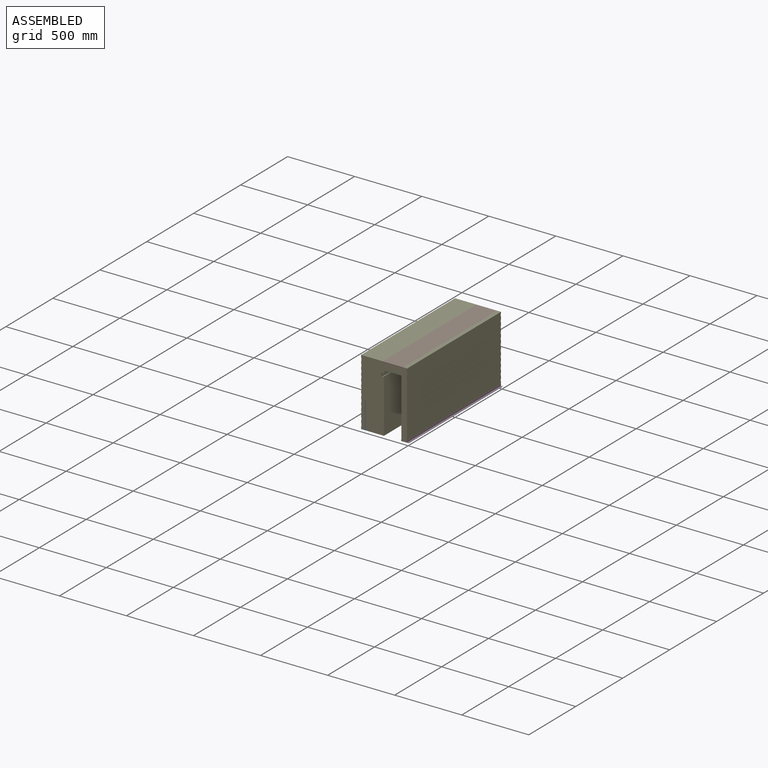
[diagram: assembled view]
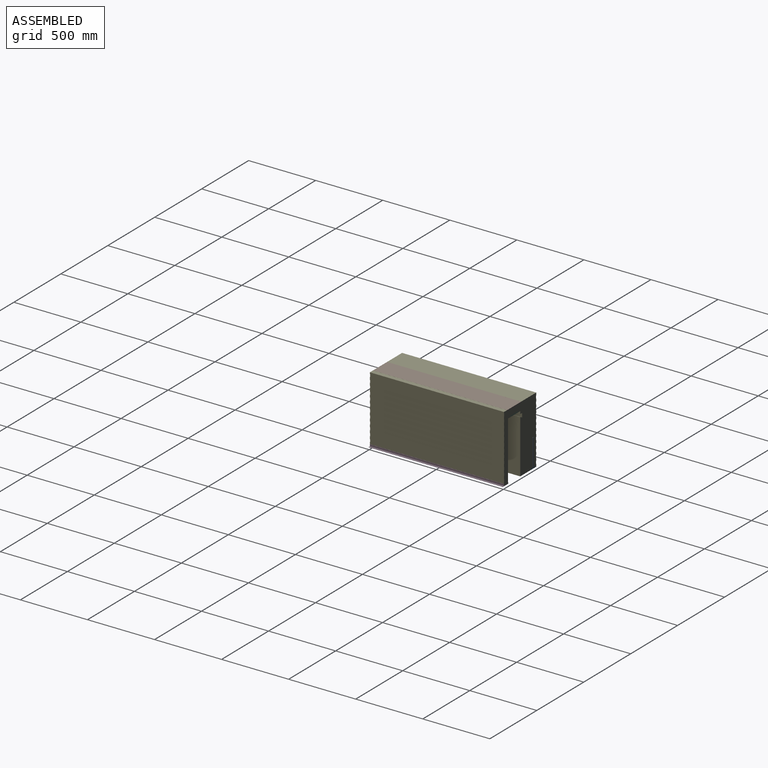
[diagram: assembled view, second angle]
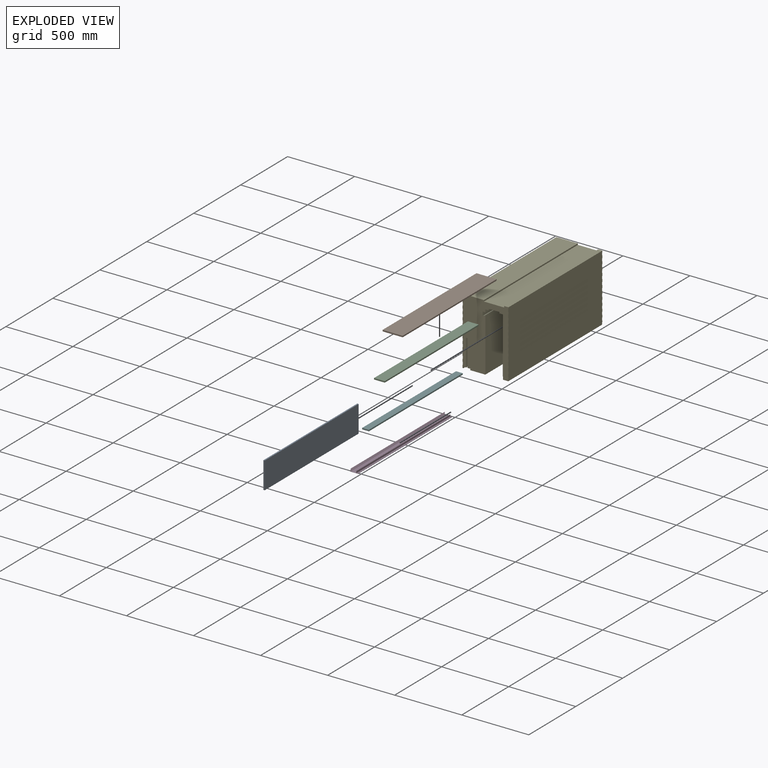
[diagram: exploded view]
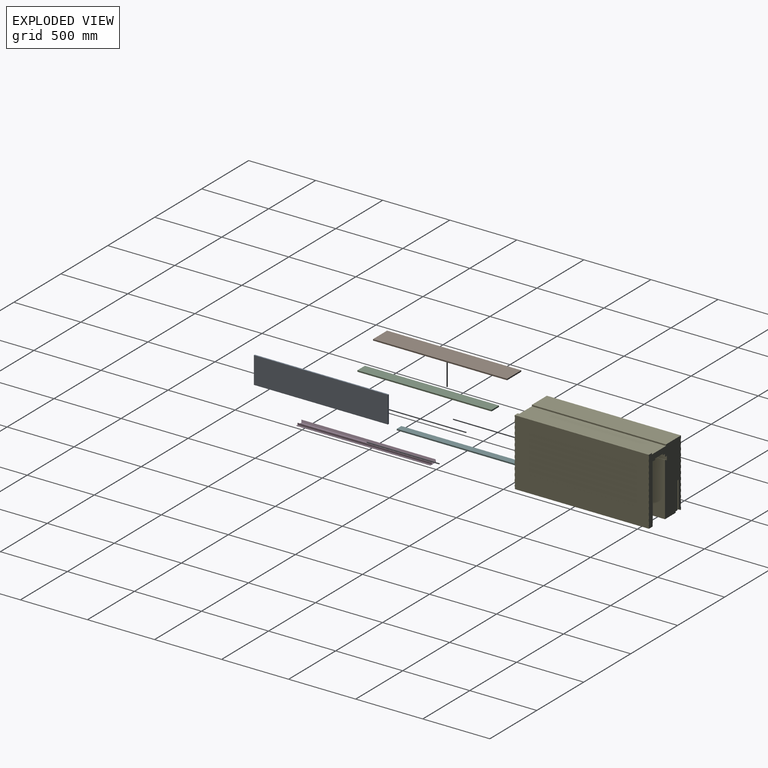
[diagram: exploded view, second angle]
ASSEMBLY  parts=6 mates=5
PART A: 6 faces, bbox 200x1000x10 mm
  f0: plane 1000x10mm, normal (-1,0,0), area 10000mm2, adj f1,f3,f4,f5
  f1: plane 1000x200mm, normal (0,0,-1), area 200000mm2, adj f0,f2,f4,f5
  f2: plane 1000x10mm, normal (1,0,0), area 10000mm2, adj f1,f3,f4,f5
  f3: plane 1000x200mm, normal (0,0,1), area 200000mm2, adj f0,f2,f4,f5
  f4: plane 200x10mm, normal (0,-1,0), area 2000mm2, adj f0,f1,f2,f3
  f5: plane 200x10mm, normal (0,1,0), area 2000mm2, adj f0,f1,f2,f3
PART B: 6 faces, bbox 150x1000x10 mm
  f0: plane 1000x10mm, normal (-1,0,0), area 10000mm2, adj f1,f3,f4,f5
  f1: plane 1000x150mm, normal (0,0,-1), area 150000mm2, adj f0,f2,f4,f5
  f2: plane 1000x10mm, normal (1,0,0), area 10000mm2, adj f1,f3,f4,f5
  f3: plane 1000x150mm, normal (0,0,1), area 150000mm2, adj f0,f2,f4,f5
  f4: plane 150x10mm, normal (0,-1,0), area 1500mm2, adj f0,f1,f2,f3
  f5: plane 150x10mm, normal (0,1,0), area 1500mm2, adj f0,f1,f2,f3
PART C: 6 faces, bbox 80x1000x10 mm
  f0: plane 1000x10mm, normal (-1,0,0), area 10000mm2, adj f1,f3,f4,f5
  f1: plane 1000x80mm, normal (0,0,-1), area 80000mm2, adj f0,f2,f4,f5
  f2: plane 1000x10mm, normal (1,0,0), area 10000mm2, adj f1,f3,f4,f5
  f3: plane 1000x80mm, normal (0,0,1), area 80000mm2, adj f0,f2,f4,f5
  f4: plane 80x10mm, normal (0,-1,0), area 800mm2, adj f0,f1,f2,f3
  f5: plane 80x10mm, normal (0,1,0), area 800mm2, adj f0,f1,f2,f3
PART D: 62 faces, bbox 57.5x1000x21 mm
  f0: plane 1000x14.3mm, normal (-1,0,0), area 14303.9mm2, adj f1,f2,f60,f61
  f1: plane 57.5x21mm, normal (0,-1,0), area 145.8mm2, adj f0,f2,f3,f4,f5,f6,f7,f8
  f2: plane 1000x11mm, normal (0,0,1), area 11000mm2, adj f0,f1,f3,f60
  f3: plane 1000x1.5mm, normal (1,0,0), area 1500mm2, adj f1,f2,f4,f60
  f4: plane 1000x1.5mm, normal (0,0,1), area 1500mm2, adj f1,f3,f5,f60
  f5: plane 1000x3mm, normal (-1,0,0), area 3000mm2, adj f1,f4,f6,f60
  f6: plane 1000x57.5mm, normal (0,0,-1), area 57500mm2, adj f1,f5,f7,f60
  f7: plane 1000x4mm, normal (1,0,0), area 4000mm2, adj f1,f6,f8,f60
  f8: plane 1000x1mm, normal (0,0,1), area 1000mm2, adj f1,f7,f9,f60
  f9: plane 1000x3mm, normal (-1,0,0), area 3000mm2, adj f1,f8,f10,f60
  f10: plane 1000x1mm, normal (0,0,1), area 1000mm2, adj f1,f9,f11,f60
  f11: plane 1000x7mm, normal (1,0,0), area 7000mm2, adj f1,f10,f12,f60
  f12: plane 1000x1mm, normal (0,0,-1), area 1000mm2, adj f1,f11,f13,f60
  f13: plane 1000x3mm, normal (-1,0,0), area 3000mm2, adj f1,f12,f14,f60
  f14: plane 1000x1mm, normal (0,0,-1), area 1000mm2, adj f1,f13,f15,f60
  f15: plane 1000x4mm, normal (1,0,0), area 4000mm2, adj f1,f14,f16,f60
  f16: plane 1000x2mm, normal (0,0,1), area 2000mm2, adj f1,f15,f17,f60
  f17: plane 1000x12mm, normal (1,0,0), area 12000mm2, adj f1,f16,f18,f60
  f18: plane 1000x1mm, normal (0,0,1), area 1000mm2, adj f1,f17,f19,f60
  f19: plane 1000x1.73mm, normal (-0.87,0,0.5), area 2000mm2, adj f1,f18,f20,f60
  f20: plane 1000x1mm, normal (0,0,-1), area 1000mm2, adj f1,f19,f21,f60
  f21: plane 1000x1.73mm, normal (-0.87,0,0.5), area 2000mm2, adj f1,f20,f22,f60
  f22: plane 1000x1mm, normal (0,0,-1), area 1000mm2, adj f1,f21,f23,f60
  f23: plane 1000x1.73mm, normal (-0.87,0,0.5), area 2000mm2, adj f1,f22,f24,f60
  f24: plane 1000x1mm, normal (0,0,-1), area 1000mm2, adj f1,f23,f25,f60
  f25: plane 1000x1.73mm, normal (-0.87,0,0.5), area 2000mm2, adj f1,f24,f26,f60
  f26: plane 1000x1mm, normal (0,0,-1), area 1000mm2, adj f1,f25,f27,f60
  f27: plane 1000x1.73mm, normal (-0.87,0,0.5), area 2000mm2, adj f1,f26,f28,f60
  f28: plane 1000x1mm, normal (0,0,-1), area 1000mm2, adj f1,f27,f29,f60
  f29: plane 1000x1.73mm, normal (-0.87,0,0.5), area 2000mm2, adj f1,f28,f30,f60
  f30: plane 1000x1mm, normal (0,0,-1), area 1000mm2, adj f1,f29,f31,f60
  f31: plane 1000x1.73mm, normal (-0.87,0,0.5), area 2000mm2, adj f1,f30,f32,f60
  f32: plane 1000x1mm, normal (0,0,-1), area 1000mm2, adj f1,f31,f33,f60
  f33: plane 1000x1.73mm, normal (-0.87,0,0.5), area 2000mm2, adj f1,f32,f34,f60
  f34: plane 1000x1mm, normal (0,0,-1), area 1000mm2, adj f1,f33,f35,f60
  f35: plane 1000x1.73mm, normal (-0.87,0,0.5), area 2000mm2, adj f1,f34,f36,f60
  f36: plane 1000x1mm, normal (0,0,-1), area 1000mm2, adj f1,f35,f37,f60
  f37: plane 1000x1.73mm, normal (-0.87,0,0.5), area 2000mm2, adj f1,f36,f38,f60
  f38: plane 1000x1mm, normal (0,0,-1), area 1000mm2, adj f1,f37,f39,f60
  f39: plane 1000x1.73mm, normal (-0.87,0,0.5), area 2000mm2, adj f1,f38,f40,f60
  f40: plane 1000x1mm, normal (0,0,-1), area 1000mm2, adj f1,f39,f41,f60
  f41: plane 1000x0.45mm, normal (-1,0,0), area 447.4mm2, adj f1,f40,f42,f60
  f42: plane 1000x41mm, normal (0,0,1), area 41000mm2, adj f1,f41,f43,f60
  f43: plane 1000x0.45mm, normal (1,0,0), area 447.4mm2, adj f1,f42,f44,f60
  f44: plane 1000x1mm, normal (0,0,-1), area 1000mm2, adj f1,f43,f45,f60
  f45: plane 1000x1.73mm, normal (0.87,0,0.5), area 2000mm2, adj f1,f44,f46,f60
  f46: plane 1000x1mm, normal (0,0,-1), area 1000mm2, adj f1,f45,f47,f60
  f47: plane 1000x1.73mm, normal (0.87,0,0.5), area 2000mm2, adj f1,f46,f48,f60
  f48: plane 1000x1mm, normal (0,0,-1), area 1000mm2, adj f1,f47,f49,f60
  f49: plane 1000x1.73mm, normal (0.87,0,0.5), area 2000mm2, adj f1,f48,f50,f60
  f50: plane 1000x1mm, normal (0,0,-1), area 1000mm2, adj f1,f49,f51,f60
  f51: plane 1000x1.73mm, normal (0.87,0,0.5), area 2000mm2, adj f1,f50,f52,f60
  f52: plane 1000x1mm, normal (0,0,-1), area 1000mm2, adj f1,f51,f53,f60
  f53: plane 1000x1.73mm, normal (0.87,0,0.5), area 2000mm2, adj f1,f52,f54,f60
  f54: plane 1000x1mm, normal (0,0,-1), area 1000mm2, adj f1,f53,f55,f60
  f55: plane 1000x1.73mm, normal (0.87,0,0.5), area 2000mm2, adj f1,f54,f56,f60
  f56: plane 1000x1mm, normal (0,0,-1), area 1000mm2, adj f1,f55,f57,f60
  f57: plane 1000x1.73mm, normal (0.87,0,0.5), area 2000mm2, adj f1,f56,f58,f60
  f58: plane 1000x1mm, normal (0,0,-1), area 1000mm2, adj f1,f57,f59,f60
  f59: plane 1000x1.73mm, normal (0.87,0,0.5), area 2000mm2, adj f1,f58,f60,f61
  f60: plane 57.5x21mm, normal (0,1,0), area 145.8mm2, adj f0,f2,f3,f4,f5,f6,f7,f8
  f61: plane 1000x1mm, normal (0,0,1), area 1000mm2, adj f0,f1,f59,f60
PART E: 130 faces, bbox 343x500x1000 mm
  f0: plane 500x343mm, normal (0,0,1), area 107699.3mm2, adj f2,f3,f4,f5,f6,f7,f8,f9
  f1: plane 500x343mm, normal (0,0,-1), area 107699.3mm2, adj f2,f3,f4,f5,f6,f7,f8,f9
  f2: plane 1000x20mm, normal (-1,0,0), area 20000mm2, adj f0,f1,f122,f126
  f3: plane 1000x20mm, normal (-1,0,0), area 20000mm2, adj f0,f1,f119,f123
  f4: plane 1000x20mm, normal (-1,0,0), area 20000mm2, adj f0,f1,f116,f120
  f5: plane 1000x20mm, normal (-1,0,0), area 20000mm2, adj f0,f1,f113,f117
  f6: plane 1000x20mm, normal (-1,0,0), area 20000mm2, adj f0,f1,f110,f114
  f7: plane 1000x20mm, normal (-1,0,0), area 20000mm2, adj f0,f1,f107,f111
  f8: plane 1000x20mm, normal (-1,0,0), area 20000mm2, adj f0,f1,f104,f108
  f9: plane 1000x20mm, normal (-1,0,0), area 20000mm2, adj f0,f1,f101,f105
  f10: plane 1000x20mm, normal (-1,0,0), area 20000mm2, adj f0,f1,f98,f102
  f11: plane 1000x20mm, normal (-1,0,0), area 20000mm2, adj f0,f1,f95,f99
  f12: plane 1000x20mm, normal (-1,0,0), area 20000mm2, adj f0,f1,f92,f96
  f13: plane 1000x20mm, normal (-1,0,0), area 20000mm2, adj f0,f1,f28,f93
  f14: plane 1000x10mm, normal (1,0,0), area 10000mm2, adj f0,f1,f52,f89
  f15: plane 1000x20mm, normal (1,0,0), area 20000mm2, adj f0,f1,f86,f90
  f16: plane 1000x20mm, normal (1,0,0), area 20000mm2, adj f0,f1,f83,f87
  f17: plane 1000x20mm, normal (1,0,0), area 20000mm2, adj f0,f1,f80,f84
  f18: plane 1000x20mm, normal (1,0,0), area 20000mm2, adj f0,f1,f77,f81
  f19: plane 1000x20mm, normal (1,0,0), area 20000mm2, adj f0,f1,f74,f78
  f20: plane 1000x20mm, normal (1,0,0), area 20000mm2, adj f0,f1,f71,f75
  f21: plane 1000x20mm, normal (1,0,0), area 20000mm2, adj f0,f1,f68,f72
  f22: plane 1000x20mm, normal (1,0,0), area 20000mm2, adj f0,f1,f65,f69
  f23: plane 1000x20mm, normal (1,0,0), area 20000mm2, adj f0,f1,f62,f66
  f24: plane 1000x20mm, normal (1,0,0), area 20000mm2, adj f0,f1,f59,f63
  f25: plane 1000x20mm, normal (1,0,0), area 20000mm2, adj f0,f1,f56,f60
  f26: plane 1000x150.5mm, normal (0,1,0), area 150500mm2, adj f0,f1,f27,f55
  f27: plane 1000x10mm, normal (1,0,0), area 10000mm2, adj f0,f1,f26,f28
  f28: plane 1000x159.75mm, normal (0,1,0), area 159750mm2, adj f0,f1,f13,f27
  f29: plane 1000x20mm, normal (-1,0,0), area 20000mm2, adj f0,f1,f30,f125
  f30: plane 1000x7mm, normal (0,-1,0), area 7000mm2, adj f0,f1,f29,f129
  f31: plane 1000x202mm, normal (1,0,0), area 202000mm2, adj f0,f1,f32,f128
  f32: cylinder r=10mm len=1000mm, axis (0,0,-1), area 11054.3mm2, adj f0,f1,f31,f33
  f33: plane 1000x202mm, normal (-1,0,0), area 202000mm2, adj f0,f1,f32,f34
  f34: plane 1000x20mm, normal (0,-1,0), area 20000mm2, adj f0,f1,f33,f35
  f35: plane 1000x10mm, normal (-1,0,0), area 10000mm2, adj f0,f1,f34,f36
  f36: plane 1000x112.5mm, normal (0,-1,0), area 112500mm2, adj f0,f1,f35,f37
  f37: plane 1000x400.19mm, normal (1,0,0), area 400190.5mm2, adj f0,f1,f36,f38
  f38: plane 1000x20mm, normal (-0.45,0.89,0), area 22446.5mm2, adj f0,f1,f37,f39
  f39: plane 1000x30mm, normal (1,0,0), area 30000mm2, adj f0,f1,f38,f40
  f40: plane 1000x20mm, normal (0,-1,0), area 20000mm2, adj f0,f1,f39,f41
  f41: plane 1000x20mm, normal (1,0,0), area 20000mm2, adj f0,f1,f40,f42
  f42: plane 1000x24.75mm, normal (0,-1,0), area 24750mm2, adj f0,f1,f41,f43
  f43: plane 1000x10mm, normal (1,0,0), area 10000mm2, adj f0,f1,f42,f44
  f44: plane 1000x80.5mm, normal (0,-1,0), area 80500mm2, adj f0,f1,f43,f45
  f45: plane 1000x10mm, normal (-1,0,0), area 10000mm2, adj f0,f1,f44,f46
  f46: plane 1000x24.75mm, normal (0,-1,0), area 24750mm2, adj f0,f1,f45,f47
  f47: plane 1000x417.5mm, normal (-1,0,0), area 417500mm2, adj f0,f1,f46,f48
  f48: plane 1000x2mm, normal (0,-1,0), area 2000mm2, adj f0,f1,f47,f49
  f49: plane 1000x21.5mm, normal (-1,0,0), area 21500mm2, adj f0,f1,f48,f50
  f50: plane 1000x39.1mm, normal (0,-1,0), area 39100mm2, adj f0,f1,f49,f51
  f51: plane 1000x18.5mm, normal (1,0,0), area 18500mm2, adj f0,f1,f50,f52
  f52: plane 1000x1.9mm, normal (0,-1,0), area 1900mm2, adj f0,f1,f14,f51
  f53: plane 1000x10.5mm, normal (1,0,0), area 10500mm2, adj f0,f1,f54,f57
  f54: plane 1000x32.75mm, normal (0,1,0), area 32750mm2, adj f0,f1,f53,f55
  f55: plane 1000x10mm, normal (-1,0,0), area 10000mm2, adj f0,f1,f26,f54
  f56: plane 1000x2mm, normal (-0.71,0.71,0), area 2828.4mm2, adj f0,f1,f25,f58
  f57: plane 1000x2mm, normal (-0.71,-0.71,0), area 2828.4mm2, adj f0,f1,f53,f58
  f58: plane 1000x24mm, normal (1,0,0), area 24000mm2, adj f0,f1,f56,f57
  f59: plane 1000x2mm, normal (-0.71,0.71,0), area 2828.4mm2, adj f0,f1,f24,f61
  f60: plane 1000x2mm, normal (-0.71,-0.71,0), area 2828.4mm2, adj f0,f1,f25,f61
  f61: plane 1000x24mm, normal (1,0,0), area 24000mm2, adj f0,f1,f59,f60
  f62: plane 1000x2mm, normal (-0.71,0.71,0), area 2828.4mm2, adj f0,f1,f23,f64
  f63: plane 1000x2mm, normal (-0.71,-0.71,0), area 2828.4mm2, adj f0,f1,f24,f64
  f64: plane 1000x24mm, normal (1,0,0), area 24000mm2, adj f0,f1,f62,f63
  f65: plane 1000x2mm, normal (-0.71,0.71,0), area 2828.4mm2, adj f0,f1,f22,f67
  f66: plane 1000x2mm, normal (-0.71,-0.71,0), area 2828.4mm2, adj f0,f1,f23,f67
  f67: plane 1000x24mm, normal (1,0,0), area 24000mm2, adj f0,f1,f65,f66
  f68: plane 1000x2mm, normal (-0.71,0.71,0), area 2828.4mm2, adj f0,f1,f21,f70
  f69: plane 1000x2mm, normal (-0.71,-0.71,0), area 2828.4mm2, adj f0,f1,f22,f70
  f70: plane 1000x24mm, normal (1,0,0), area 24000mm2, adj f0,f1,f68,f69
  f71: plane 1000x2mm, normal (-0.71,0.71,0), area 2828.4mm2, adj f0,f1,f20,f73
  f72: plane 1000x2mm, normal (-0.71,-0.71,0), area 2828.4mm2, adj f0,f1,f21,f73
  f73: plane 1000x24mm, normal (1,0,0), area 24000mm2, adj f0,f1,f71,f72
  f74: plane 1000x2mm, normal (-0.71,0.71,0), area 2828.4mm2, adj f0,f1,f19,f76
  f75: plane 1000x2mm, normal (-0.71,-0.71,0), area 2828.4mm2, adj f0,f1,f20,f76
  f76: plane 1000x24mm, normal (1,0,0), area 24000mm2, adj f0,f1,f74,f75
  f77: plane 1000x2mm, normal (-0.71,0.71,0), area 2828.4mm2, adj f0,f1,f18,f79
  f78: plane 1000x2mm, normal (-0.71,-0.71,0), area 2828.4mm2, adj f0,f1,f19,f79
  f79: plane 1000x24mm, normal (1,0,0), area 24000mm2, adj f0,f1,f77,f78
  f80: plane 1000x2mm, normal (-0.71,0.71,0), area 2828.4mm2, adj f0,f1,f17,f82
  f81: plane 1000x2mm, normal (-0.71,-0.71,0), area 2828.4mm2, adj f0,f1,f18,f82
  f82: plane 1000x24mm, normal (1,0,0), area 24000mm2, adj f0,f1,f80,f81
  f83: plane 1000x2mm, normal (-0.71,0.71,0), area 2828.4mm2, adj f0,f1,f16,f85
  f84: plane 1000x2mm, normal (-0.71,-0.71,0), area 2828.4mm2, adj f0,f1,f17,f85
  f85: plane 1000x24mm, normal (1,0,0), area 24000mm2, adj f0,f1,f83,f84
  f86: plane 1000x2mm, normal (-0.71,0.71,0), area 2828.4mm2, adj f0,f1,f15,f88
  f87: plane 1000x2mm, normal (-0.71,-0.71,0), area 2828.4mm2, adj f0,f1,f16,f88
  f88: plane 1000x24mm, normal (1,0,0), area 24000mm2, adj f0,f1,f86,f87
  f89: plane 1000x2mm, normal (-0.71,0.71,0), area 2828.4mm2, adj f0,f1,f14,f91
  f90: plane 1000x2mm, normal (-0.71,-0.71,0), area 2828.4mm2, adj f0,f1,f15,f91
  f91: plane 1000x24mm, normal (1,0,0), area 24000mm2, adj f0,f1,f89,f90
  f92: plane 1000x2mm, normal (0.71,0.71,0), area 2828.4mm2, adj f0,f1,f12,f94
  f93: plane 1000x2mm, normal (0.71,-0.71,0), area 2828.4mm2, adj f0,f1,f13,f94
  f94: plane 1000x24mm, normal (-1,0,0), area 24000mm2, adj f0,f1,f92,f93
  f95: plane 1000x2mm, normal (0.71,0.71,0), area 2828.4mm2, adj f0,f1,f11,f97
  f96: plane 1000x2mm, normal (0.71,-0.71,0), area 2828.4mm2, adj f0,f1,f12,f97
  f97: plane 1000x24mm, normal (-1,0,0), area 24000mm2, adj f0,f1,f95,f96
  f98: plane 1000x2mm, normal (0.71,0.71,0), area 2828.4mm2, adj f0,f1,f10,f100
  f99: plane 1000x2mm, normal (0.71,-0.71,0), area 2828.4mm2, adj f0,f1,f11,f100
  f100: plane 1000x24mm, normal (-1,0,0), area 24000mm2, adj f0,f1,f98,f99
  f101: plane 1000x2mm, normal (0.71,0.71,0), area 2828.4mm2, adj f0,f1,f9,f103
  f102: plane 1000x2mm, normal (0.71,-0.71,0), area 2828.4mm2, adj f0,f1,f10,f103
  f103: plane 1000x24mm, normal (-1,0,0), area 24000mm2, adj f0,f1,f101,f102
  f104: plane 1000x2mm, normal (0.71,0.71,0), area 2828.4mm2, adj f0,f1,f8,f106
  f105: plane 1000x2mm, normal (0.71,-0.71,0), area 2828.4mm2, adj f0,f1,f9,f106
  f106: plane 1000x24mm, normal (-1,0,0), area 24000mm2, adj f0,f1,f104,f105
  f107: plane 1000x2mm, normal (0.71,0.71,0), area 2828.4mm2, adj f0,f1,f7,f109
  f108: plane 1000x2mm, normal (0.71,-0.71,0), area 2828.4mm2, adj f0,f1,f8,f109
  f109: plane 1000x24mm, normal (-1,0,0), area 24000mm2, adj f0,f1,f107,f108
  f110: plane 1000x2mm, normal (0.71,0.71,0), area 2828.4mm2, adj f0,f1,f6,f112
  f111: plane 1000x2mm, normal (0.71,-0.71,0), area 2828.4mm2, adj f0,f1,f7,f112
  f112: plane 1000x24mm, normal (-1,0,0), area 24000mm2, adj f0,f1,f110,f111
  f113: plane 1000x2mm, normal (0.71,0.71,0), area 2828.4mm2, adj f0,f1,f5,f115
  f114: plane 1000x2mm, normal (0.71,-0.71,0), area 2828.4mm2, adj f0,f1,f6,f115
  f115: plane 1000x24mm, normal (-1,0,0), area 24000mm2, adj f0,f1,f113,f114
  f116: plane 1000x2mm, normal (0.71,0.71,0), area 2828.4mm2, adj f0,f1,f4,f118
  f117: plane 1000x2mm, normal (0.71,-0.71,0), area 2828.4mm2, adj f0,f1,f5,f118
  f118: plane 1000x24mm, normal (-1,0,0), area 24000mm2, adj f0,f1,f116,f117
  f119: plane 1000x2mm, normal (0.71,0.71,0), area 2828.4mm2, adj f0,f1,f3,f121
  f120: plane 1000x2mm, normal (0.71,-0.71,0), area 2828.4mm2, adj f0,f1,f4,f121
  f121: plane 1000x24mm, normal (-1,0,0), area 24000mm2, adj f0,f1,f119,f120
  f122: plane 1000x2mm, normal (0.71,0.71,0), area 2828.4mm2, adj f0,f1,f2,f124
  f123: plane 1000x2mm, normal (0.71,-0.71,0), area 2828.4mm2, adj f0,f1,f3,f124
  f124: plane 1000x24mm, normal (-1,0,0), area 24000mm2, adj f0,f1,f122,f123
  f125: plane 1000x2mm, normal (0.71,0.71,0), area 2828.4mm2, adj f0,f1,f29,f127
  f126: plane 1000x2mm, normal (0.71,-0.71,0), area 2828.4mm2, adj f0,f1,f2,f127
  f127: plane 1000x24mm, normal (-1,0,0), area 24000mm2, adj f0,f1,f125,f126
  f128: plane 1000x20mm, normal (0,-1,0), area 20000mm2, adj f0,f1,f31,f129
  f129: plane 1000x10mm, normal (1,0,0), area 10000mm2, adj f0,f1,f30,f128
PART F: 6 faces, bbox 50x1000x10 mm
  f0: plane 1000x10mm, normal (-1,0,0), area 10000mm2, adj f1,f3,f4,f5
  f1: plane 1000x50mm, normal (0,0,-1), area 50000mm2, adj f0,f2,f4,f5
  f2: plane 1000x10mm, normal (1,0,0), area 10000mm2, adj f1,f3,f4,f5
  f3: plane 1000x50mm, normal (0,0,1), area 50000mm2, adj f0,f2,f4,f5
  f4: plane 50x10mm, normal (0,-1,0), area 500mm2, adj f0,f1,f2,f3
  f5: plane 50x10mm, normal (0,1,0), area 500mm2, adj f0,f1,f2,f3
PLACE A rot(axis=(0,1,0),90deg) t=(-323.33,500,-224.72)mm
PLACE B t=(-190.83,500,55.28)mm fixed
PLACE C t=(-155.83,500,5.28)mm
PLACE D rot(axis=(0,0,1),180deg) t=(-52.58,-500,-435.22)mm
PLACE E rot(axis=(1,0,0),90deg) t=(-168.93,500,-120.99)mm
PLACE F t=(-343.08,500,-434.72)mm
MATE fastened A.f4 <-> E.f0  axis (0,-1,0) through (-313.08,-500,-222.72)mm
MATE fastened E.f0 <-> B.f4  axis (0,-1,0) through (-190.83,-500,65.28)mm
MATE fastened C.f4 <-> E.f0  axis (0,-1,0) through (-155.83,-500,15.28)mm
MATE fastened D.f60 <-> E.f0  axis (0,-1,0) through (-48.58,-500,-433.72)mm
MATE fastened F.f4 <-> E.f0  axis (0,-1,0) through (-293.08,-500,-424.72)mm
